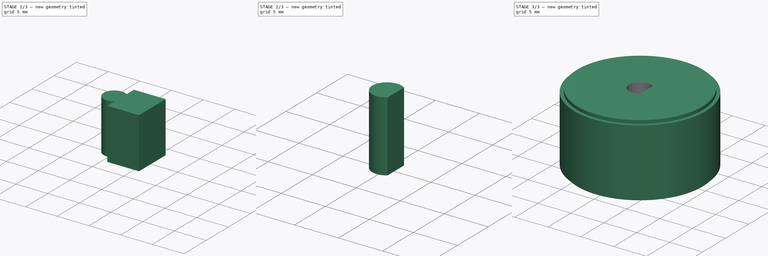
[diagram: build sequence overview — one tinted view per stage of 3, left to right]
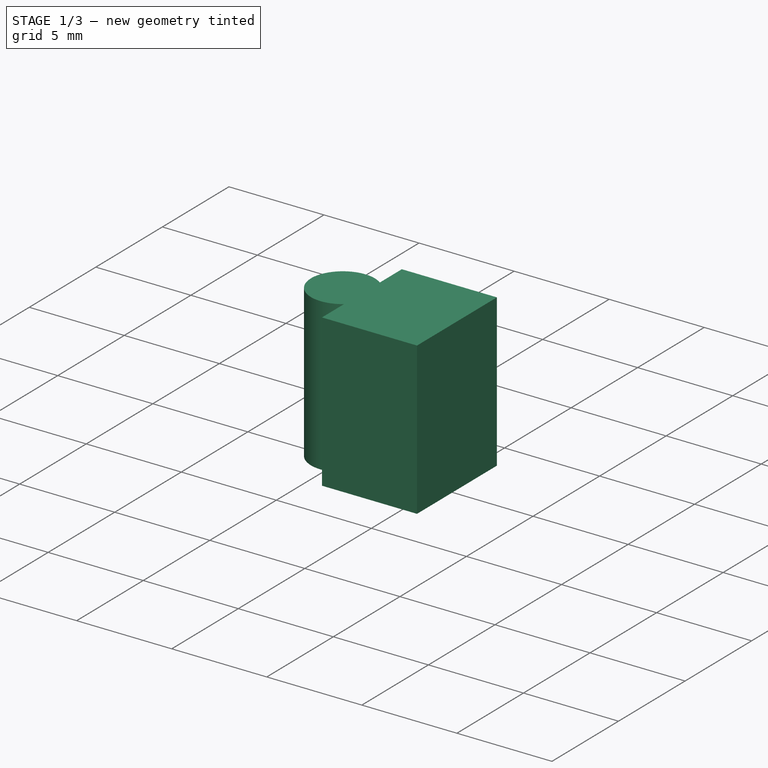
[diagram: stage 1 of 3 — iso view after this stage's code; geometry added in this stage tinted green]
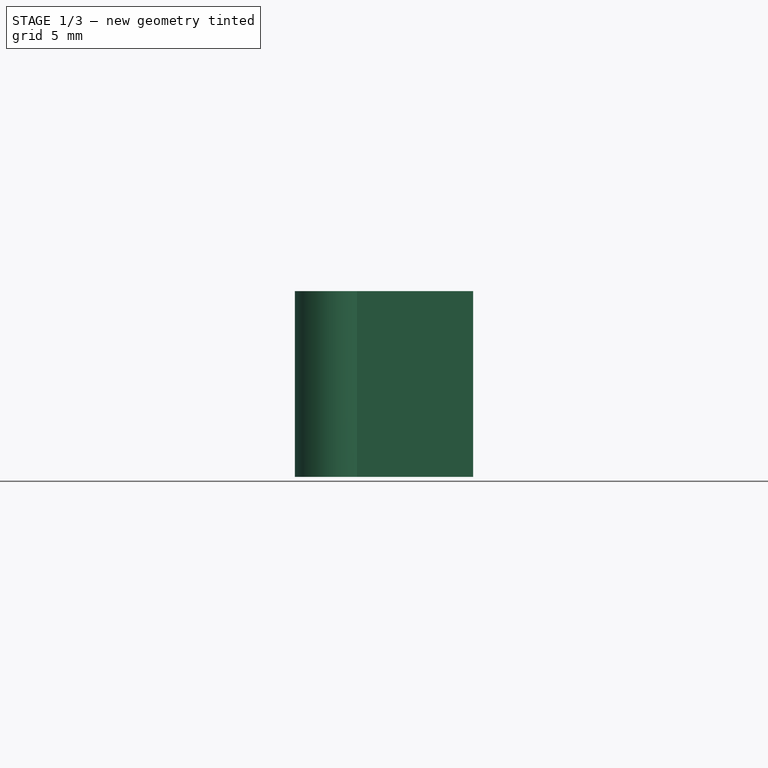
[diagram: stage 1 of 3 — front view after this stage's code; geometry added in this stage tinted green]
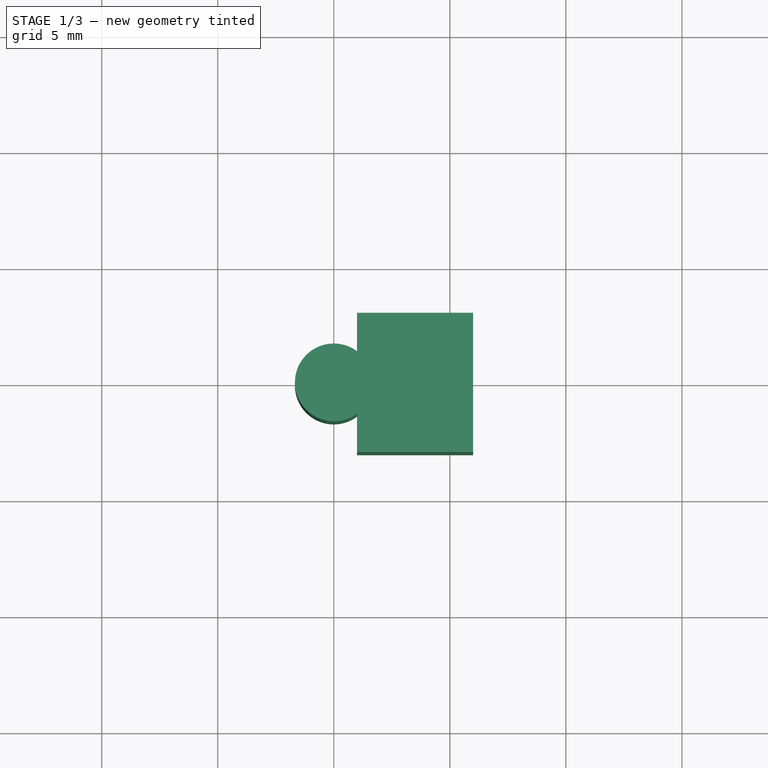
[diagram: stage 1 of 3 — top view after this stage's code; geometry added in this stage tinted green]
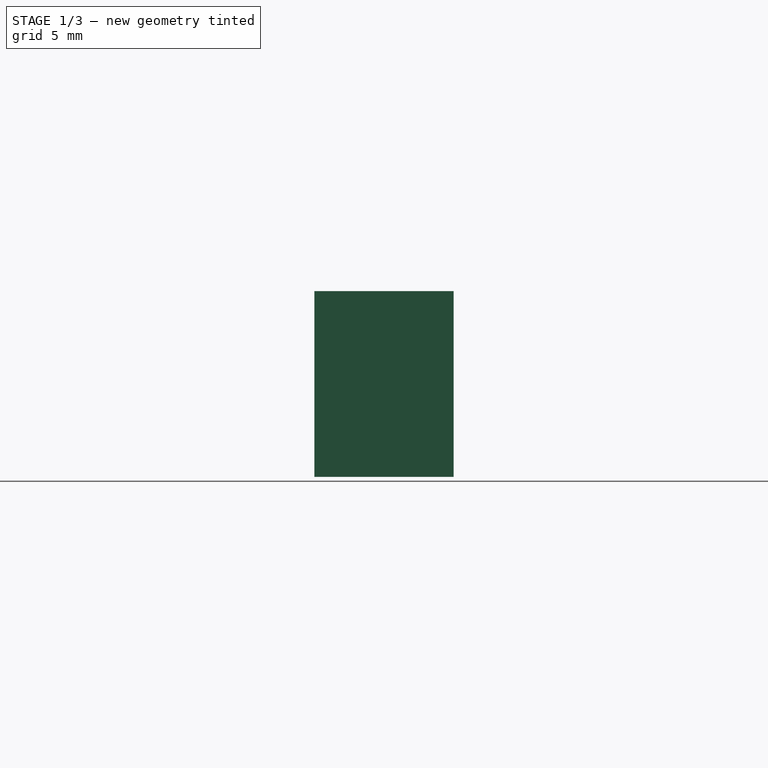
[diagram: stage 1 of 3 — right view after this stage's code; geometry added in this stage tinted green]
FCSTD DOCUMENT  (FreeCAD 0.16R6704 (Git))
Label: Rueda robot
License: All rights reserved
LicenseURL: http://en.wikipedia.org/wiki/All_rights_reserved
objects: Part::Cut×2, Sketcher::SketchObject×1, PartDesign::Revolution×1, Part::Cylinder×1, Part::Box×1
note: 7 computed .brp shape members not serialized (recipe doc carries the construction recipe); baked Part::Feature solids carry a one-line shape summary decoded from their .brp

FEATURE [Part::Cylinder] Cylinder001  label="eje"
  Angle = 360
  Height = 8
  Placement = pos=(0,0,15) rot=(0,0,1;0rad)
  Radius = 1.675
FEATURE [Part::Box] Box  label="D"
  Height = 8
  Length = 5
  Placement = pos=(1,-3,15) rot=(0,0,1;0rad)
  Width = 6
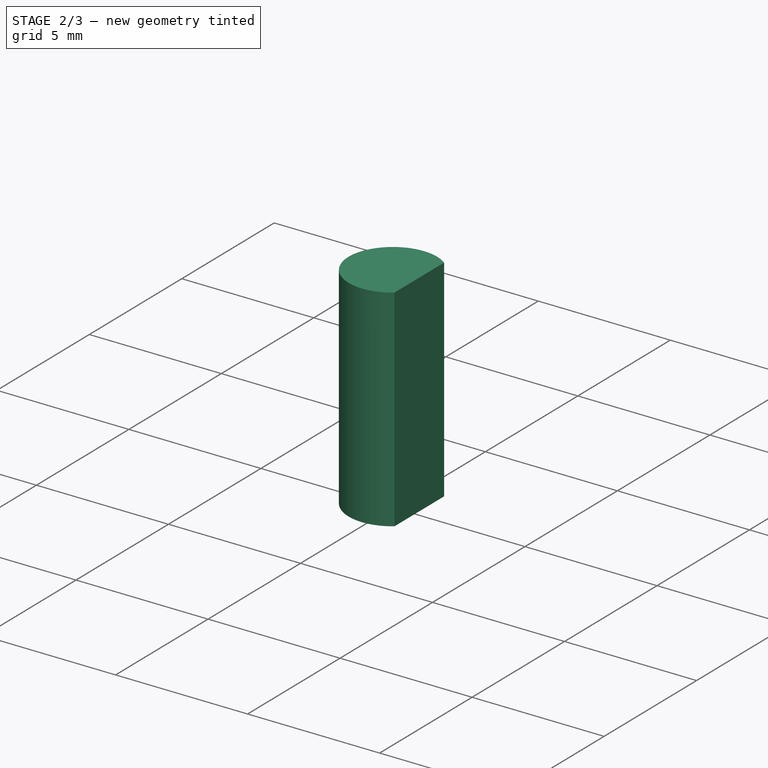
[diagram: stage 2 of 3 — iso view after this stage's code; geometry added in this stage tinted green]
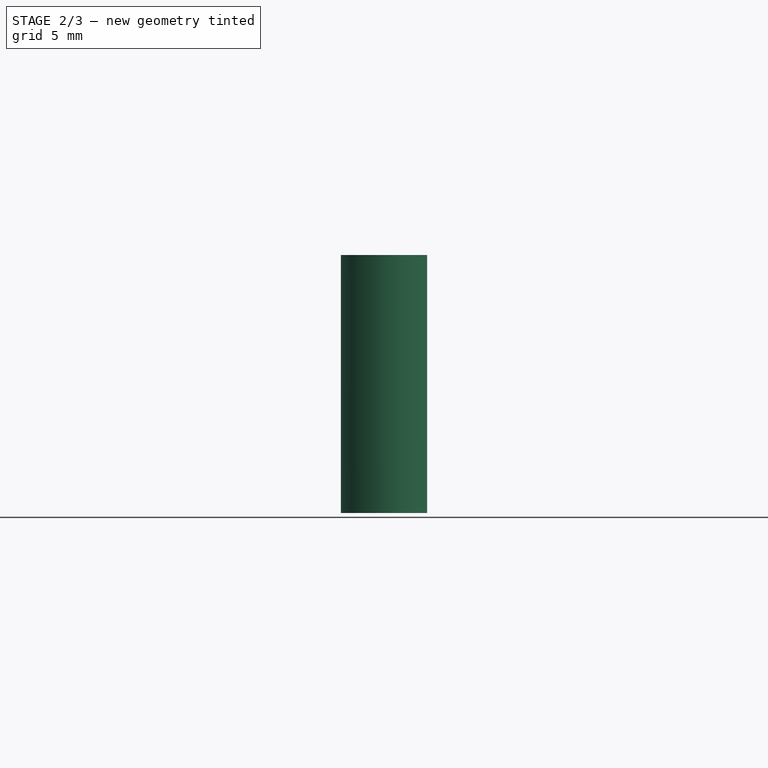
[diagram: stage 2 of 3 — front view after this stage's code; geometry added in this stage tinted green]
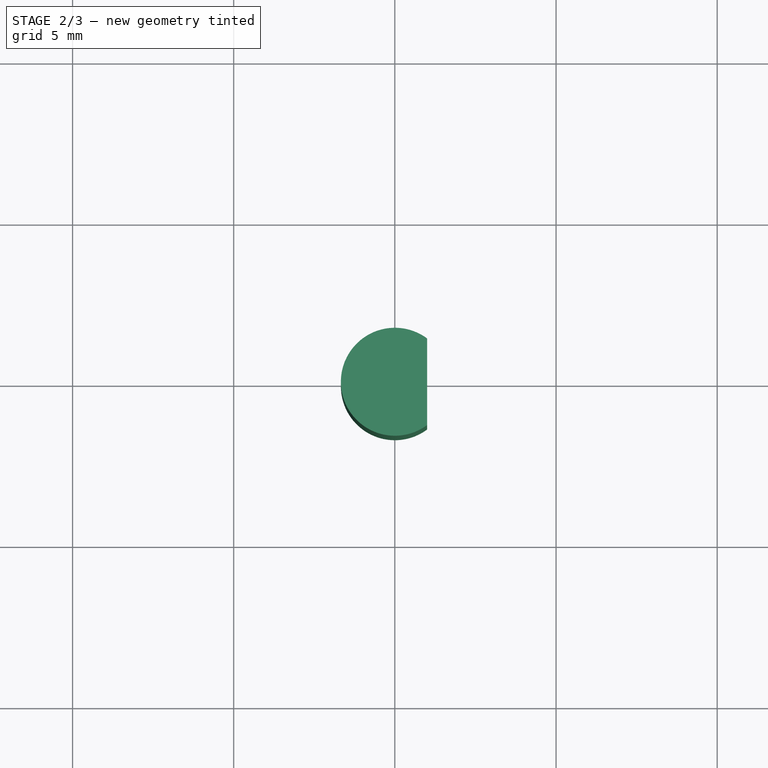
[diagram: stage 2 of 3 — top view after this stage's code; geometry added in this stage tinted green]
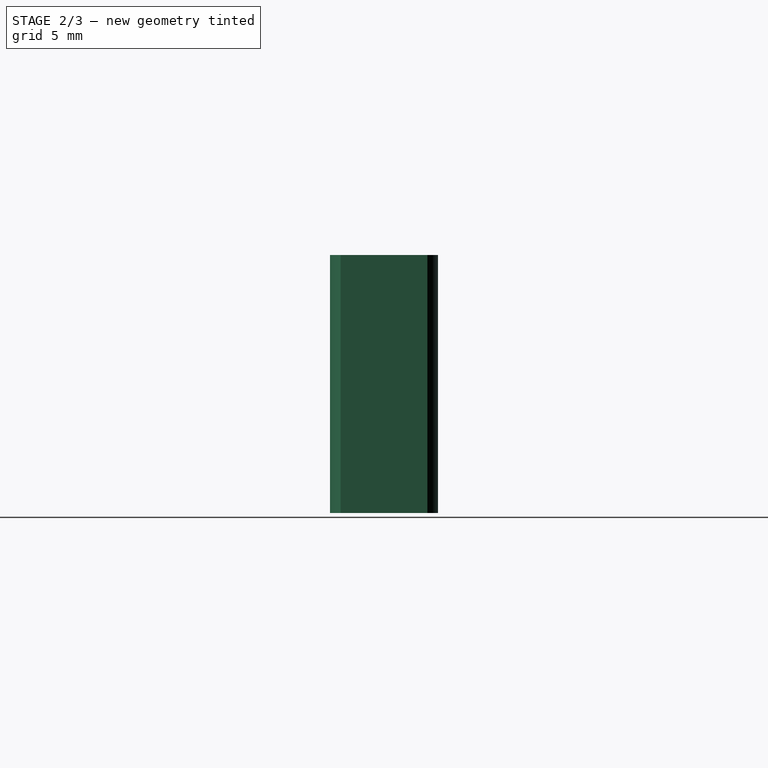
[diagram: stage 2 of 3 — right view after this stage's code; geometry added in this stage tinted green]
FEATURE [Part::Cut] Cut  label="EJE + D"
  Base = -> Cylinder001
  Placement = pos=(0,0,-12) rot=(0,0,1;0rad)
  Tool = -> Box
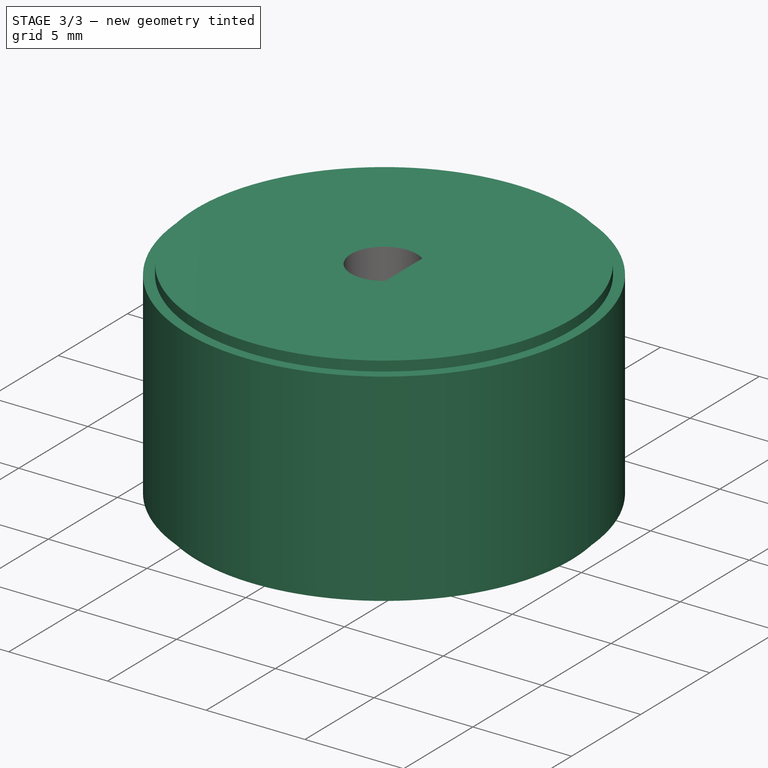
[diagram: stage 3 of 3 — iso view after this stage's code; geometry added in this stage tinted green]
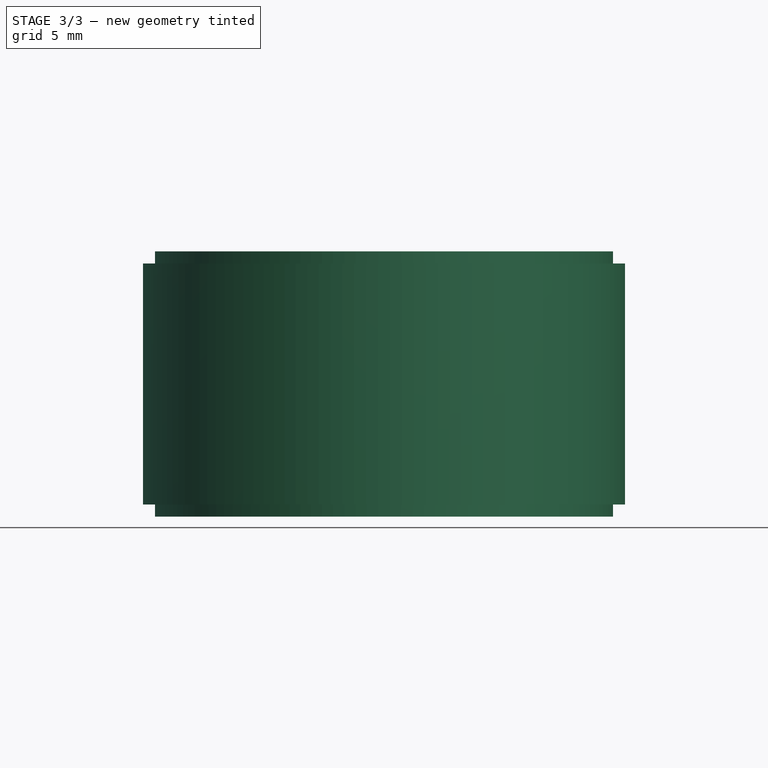
[diagram: stage 3 of 3 — front view after this stage's code; geometry added in this stage tinted green]
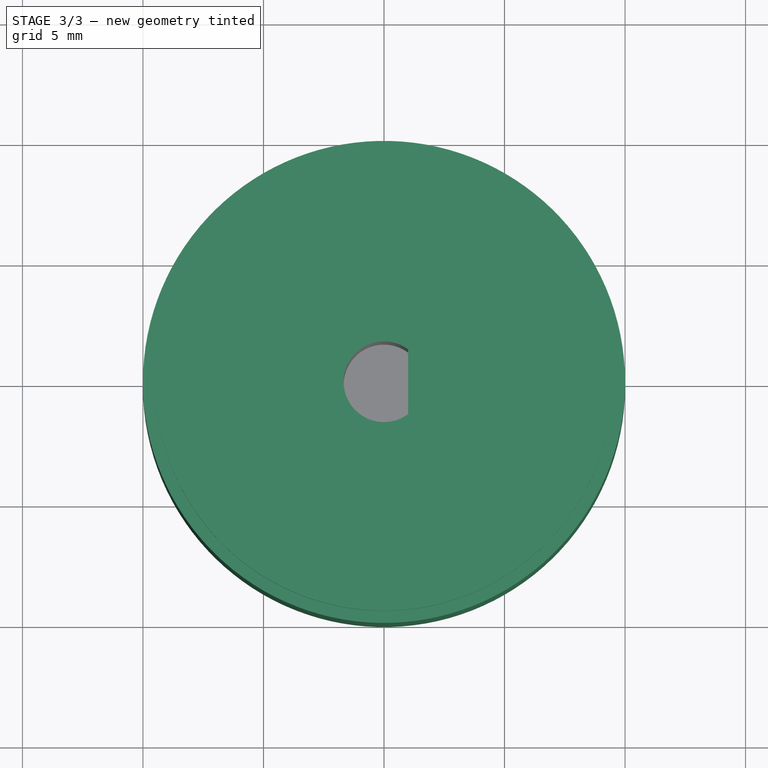
[diagram: stage 3 of 3 — top view after this stage's code; geometry added in this stage tinted green]
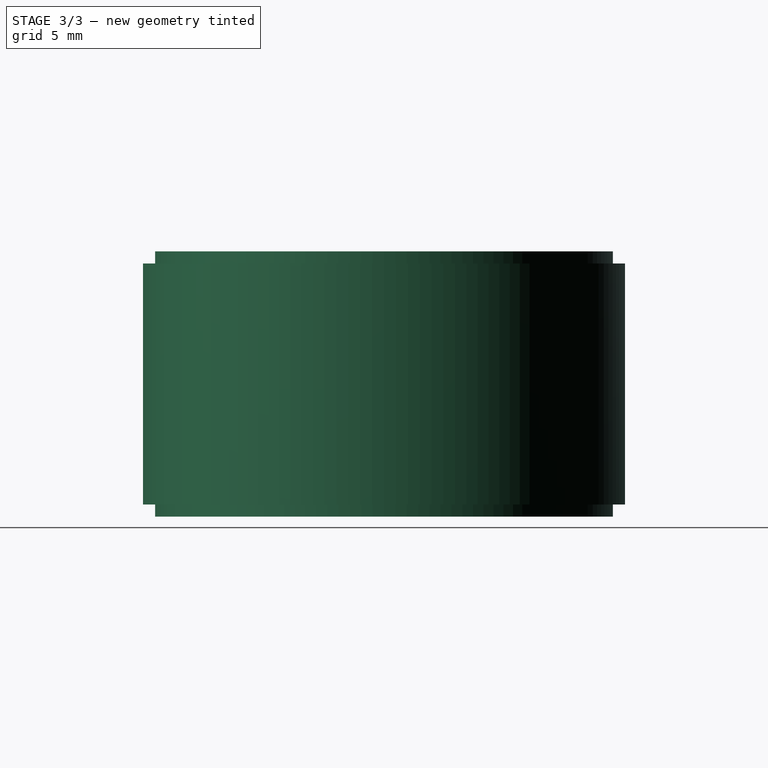
[diagram: stage 3 of 3 — right view after this stage's code; geometry added in this stage tinted green]
FEATURE [Sketcher::SketchObject] Sketch
  Placement = pos=(0,0,0) rot=(1,0,0;1.5708rad)
  sketch-geometry (8):
    g0: LineSegment StartX=9.5 StartY=11 StartZ=0 EndX=0 EndY=11 EndZ=0
    g1: LineSegment StartX=0 StartY=11 StartZ=0 EndX=0 EndY=0 EndZ=0
    g2: LineSegment StartX=0 StartY=0 StartZ=0 EndX=9.5 EndY=0 EndZ=0
    g3: LineSegment StartX=9.5 StartY=0 StartZ=0 EndX=9.5 EndY=0.5 EndZ=0
    g4: LineSegment StartX=9.5 StartY=0.5 StartZ=0 EndX=10 EndY=0.5 EndZ=0
    g5: LineSegment StartX=10 StartY=0.5 StartZ=0 EndX=10 EndY=10.5 EndZ=0
    g6: LineSegment StartX=10 StartY=10.5 StartZ=0 EndX=9.5 EndY=10.5 EndZ=0
    g7: LineSegment StartX=9.5 StartY=10.5 StartZ=0 EndX=9.5 EndY=11 EndZ=0
  constraints (23):
    c: Horizontal(g0)
    c: Coincident(g0,g1)
    c: Vertical(g1)
    c: Coincident(g1,g2)
    c: Horizontal(g2)
    c: Coincident(g2,g3)
    c: Vertical(g3)
    c: Coincident(g3,g4)
    c: Horizontal(g4)
    c: Coincident(g4,g5)
    c: Vertical(g5)
    c: Coincident(g5,g6)
    c: Horizontal(g6)
    c: Coincident(g6,g7)
    c: Coincident(g7,g0)
    c: DistanceY(g6,g0) = 0.5
    c: DistanceY(g2,g3) = 0.5
    c: DistanceY(g5,g5) = 10
    c: DistanceX(g6,g6) = 0.5
    c: DistanceX(g4,g4) = 0.5
    c: DistanceX(g0,g0) = 9.5
    c: DistanceX(g2,g2) = 9.5
    c: Coincident(g1,g-1)
FEATURE [PartDesign::Revolution] Revolution
  Angle = 360
  Axis = (0,0,1)
  Base = (0,0,0)
  Placement = pos=(0,0,0) rot=(1,0,0;1.5708rad)
  ReferenceAxis = -> Sketch [V_Axis]
  Reversed = true
  Sketch = -> Sketch
FEATURE [Part::Cut] Cut001
  Base = -> Revolution
  Tool = -> Cut
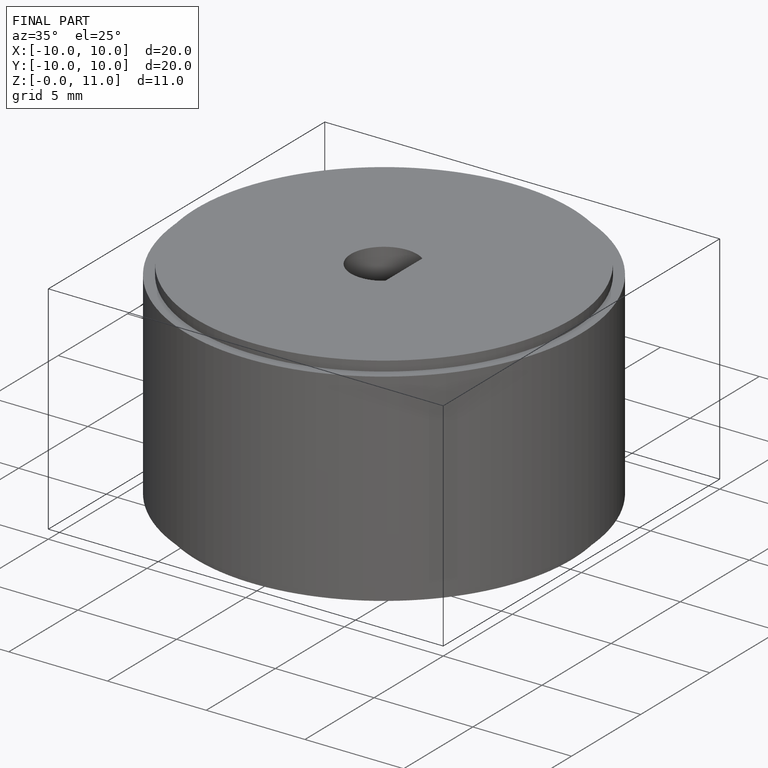
[diagram: finished part — iso view with bounding-box wireframe]
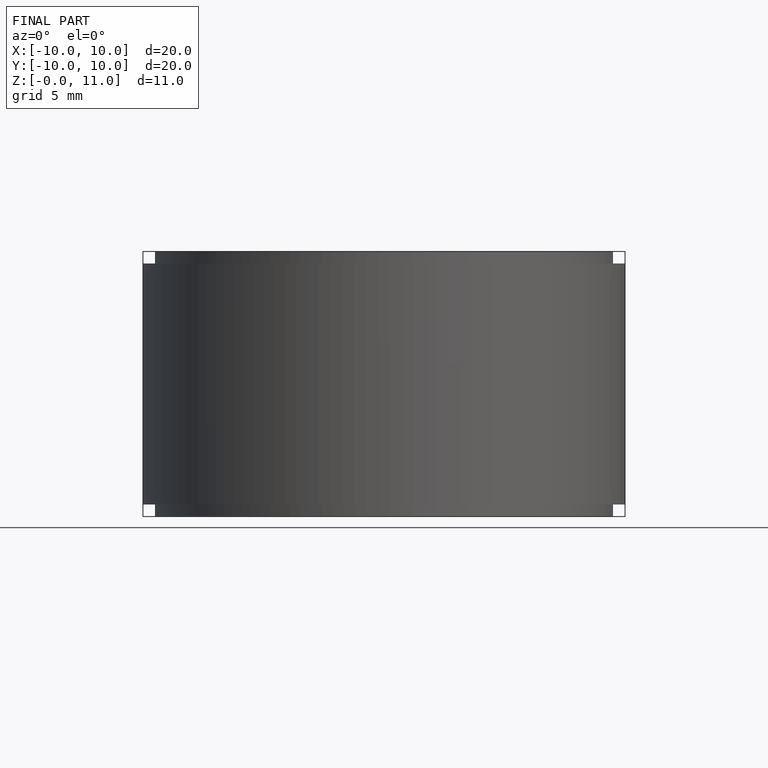
[diagram: finished part — front view with bounding-box wireframe]
